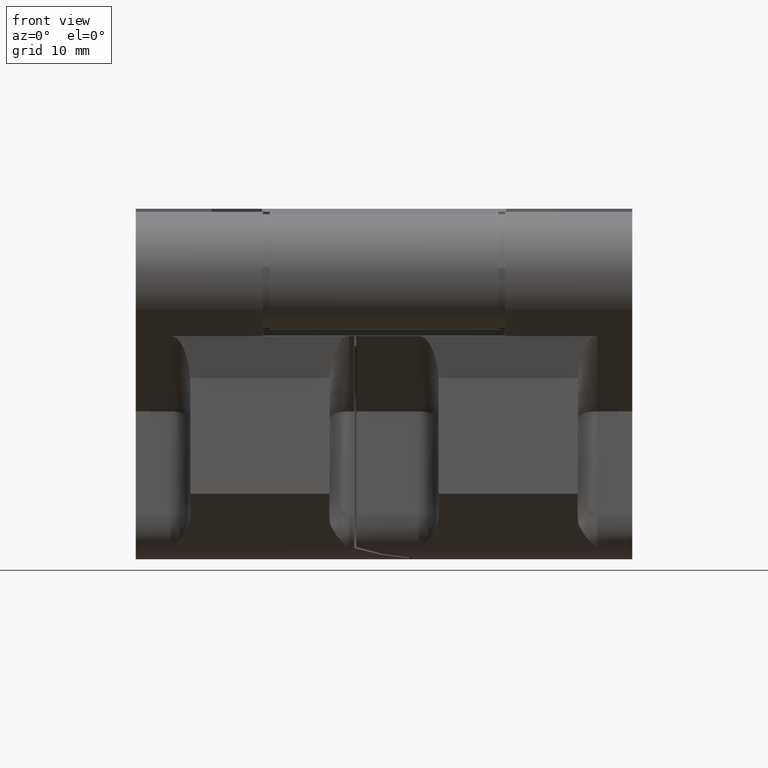
[diagram: clean part render]
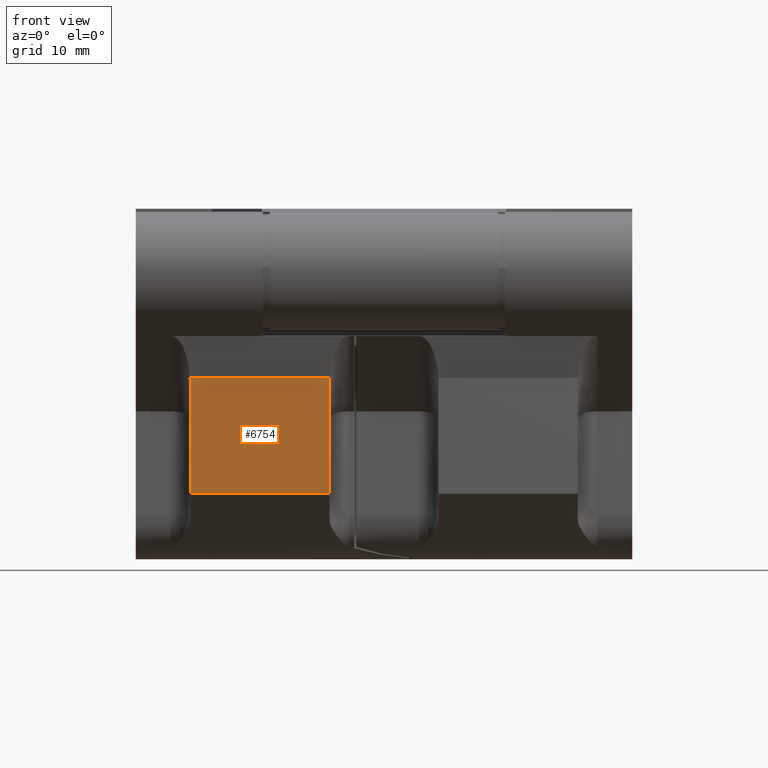
[diagram: same view with one face highlighted and labeled with its STEP entity id]
A machine part, front view. The second image highlights one B-rep face of the part: STEP entity #6754.
In plain terms, the highlighted face is a freeform B-spline surface patch.
Its self-contained STEP definition (entity closure, byte-faithful):
#6203=CARTESIAN_POINT('',(-19.527272057284652,-35.0,18.258040681037151));
#6204=VERTEX_POINT('',#6203);
#6220=CARTESIAN_POINT('',(-19.499999999949999,-35.0,17.745962977686201));
#6221=VERTEX_POINT('',#6220);
#6227=CARTESIAN_POINT('',(-19.527272057284730,-35.0,18.258040681037151));
#6228=CARTESIAN_POINT('',(-19.499999999949896,-35.0,18.003759489675602));
#6229=CARTESIAN_POINT('',(-19.499999999949900,-35.0,17.745962977686201));
#6237=(BOUNDED_CURVE()B_SPLINE_CURVE(2,(#6227,#6228,#6229),.UNSPECIFIED.,.F.,.U.)CURVE()GEOMETRIC_REPRESENTATION_ITEM()QUASI_UNIFORM_CURVE()RATIONAL_B_SPLINE_CURVE((1.0,0.996585162274722,1.0))REPRESENTATION_ITEM(''));
#6238=EDGE_CURVE('',#6204,#6221,#6237,.T.);
#6385=CARTESIAN_POINT('',(-5.499999999949989,-35.0,17.745962977686201));
#6386=VERTEX_POINT('',#6385);
#6387=CARTESIAN_POINT('',(-5.472727942615110,-35.0,18.258040681037151));
#6388=VERTEX_POINT('',#6387);
#6389=CARTESIAN_POINT('',(-5.499999999949950,-35.0,17.745962977686201));
#6390=CARTESIAN_POINT('',(-5.499999999949950,-35.0,18.003759489675598));
#6391=CARTESIAN_POINT('',(-5.472727942615117,-35.0,18.258040681037151));
#6399=(BOUNDED_CURVE()B_SPLINE_CURVE(2,(#6389,#6390,#6391),.UNSPECIFIED.,.F.,.U.)CURVE()GEOMETRIC_REPRESENTATION_ITEM()QUASI_UNIFORM_CURVE()RATIONAL_B_SPLINE_CURVE((1.0,0.996585162274905,1.0))REPRESENTATION_ITEM(''));
#6400=EDGE_CURVE('',#6386,#6388,#6399,.T.);
#6676=CARTESIAN_POINT('',(-19.499999999949999,-35.0,6.597113694237150));
#6677=VERTEX_POINT('',#6676);
#6683=CARTESIAN_POINT('',(-19.499999999949999,-35.0,17.745962977686201));
#6684=CARTESIAN_POINT('',(-19.499999999949999,-35.0,6.597113694237150));
#6685=QUASI_UNIFORM_CURVE('',1,(#6683,#6684),.UNSPECIFIED.,.F.,.U.);
#6686=EDGE_CURVE('',#6221,#6677,#6685,.T.);
#6697=CARTESIAN_POINT('',(-5.499999999949989,-35.0,6.597113694237150));
#6698=VERTEX_POINT('',#6697);
#6707=CARTESIAN_POINT('',(-5.499999999949989,-35.0,17.745962977686201));
#6708=CARTESIAN_POINT('',(-5.499999999949989,-35.0,6.597113694237150));
#6709=QUASI_UNIFORM_CURVE('',1,(#6707,#6708),.UNSPECIFIED.,.F.,.U.);
#6710=EDGE_CURVE('',#6386,#6698,#6709,.T.);
#6729=CARTESIAN_POINT('',(-5.499999999949989,-35.0,6.597113694237150));
#6730=CARTESIAN_POINT('',(-19.499999999949999,-35.0,6.597113694237150));
#6731=QUASI_UNIFORM_CURVE('',1,(#6729,#6730),.UNSPECIFIED.,.F.,.U.);
#6732=EDGE_CURVE('',#6698,#6677,#6731,.T.);
#6737=CARTESIAN_POINT('',(-20.229296508571959,-35.0,6.014650413847629));
#6738=CARTESIAN_POINT('',(-20.229296508571959,-35.0,18.840504274197109));
#6739=CARTESIAN_POINT('',(-4.770703114355554,-35.0,6.014650413847629));
#6740=CARTESIAN_POINT('',(-4.770703114355554,-35.0,18.840504274197109));
#6741=B_SPLINE_SURFACE_WITH_KNOTS('',1,1,((#6737,#6739),(#6738,#6740)),.UNSPECIFIED.,.F.,.F.,.U.,(2,2),(2,2),(0.0,12.825853860349479),(0.0,15.458593394216409),.UNSPECIFIED.);
#6742=CARTESIAN_POINT('',(-5.472727942615110,-35.0,18.258040681037151));
#6743=CARTESIAN_POINT('',(-19.527272057284652,-35.0,18.258040681037151));
#6744=QUASI_UNIFORM_CURVE('',1,(#6742,#6743),.UNSPECIFIED.,.F.,.U.);
#6745=EDGE_CURVE('',#6388,#6204,#6744,.T.);
#6746=ORIENTED_EDGE('',*,*,#6745,.T.);
#6747=ORIENTED_EDGE('',*,*,#6238,.T.);
#6748=ORIENTED_EDGE('',*,*,#6686,.T.);
#6749=ORIENTED_EDGE('',*,*,#6732,.F.);
#6750=ORIENTED_EDGE('',*,*,#6710,.F.);
#6751=ORIENTED_EDGE('',*,*,#6400,.T.);
#6752=EDGE_LOOP('',(#6746,#6747,#6748,#6749,#6750,#6751));
#6753=FACE_OUTER_BOUND('',#6752,.T.);
#6754=ADVANCED_FACE('',(#6753),#6741,.F.);